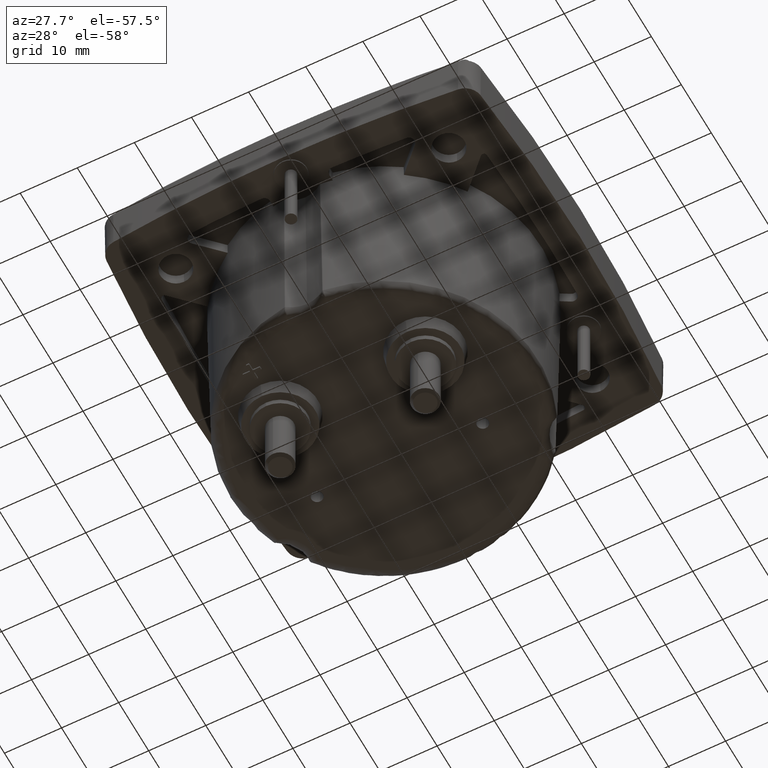
[diagram: clean part render]
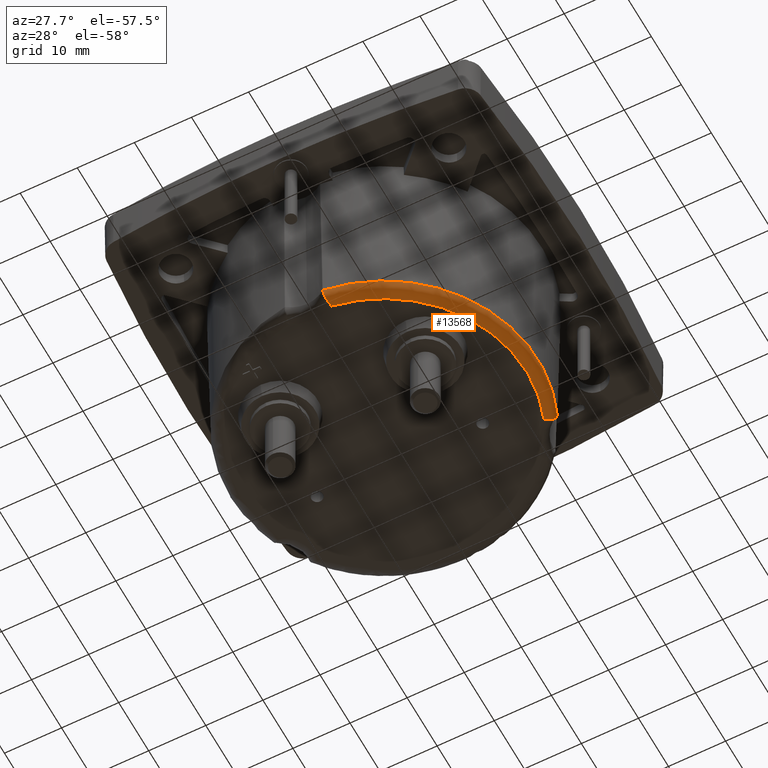
[diagram: same view with one face highlighted and labeled with its STEP entity id]
A machine part, auxiliary view. The second image highlights one B-rep face of the part: STEP entity #13568.
In plain terms, the highlighted face is a freeform B-spline surface patch.
Its self-contained STEP definition (entity closure, byte-faithful):
#163 = DIRECTION ( 'NONE',  ( 0.000000000000000000, 0.000000000000000000, 1.000000000000000000 ) ) ;
#543 = CARTESIAN_POINT ( 'NONE',  ( 1.541673589294148439, 0.1971623052784665930, -1.232418349552430348 ) ) ;
#1802 = CARTESIAN_POINT ( 'NONE',  ( 1.436688407325936945, -1.144786727957694428, -1.275590944881890731 ) ) ;
#3297 = CARTESIAN_POINT ( 'NONE',  ( 0.7073967601038961828, -1.237951086539462731, -1.252667391265019026 ) ) ;
#3783 = CARTESIAN_POINT ( 'NONE',  ( 0.7106229095790023154, -1.220937082073477509, -1.265240537520022857 ) ) ;
#3991 = CARTESIAN_POINT ( 'NONE',  ( 1.508727992144678787, 0.1686865396303875164, -1.270064860217662073 ) ) ;
#4247 = CARTESIAN_POINT ( 'NONE',  ( 1.538494690833539735, 0.1943218351687429069, -1.239498227927069873 ) ) ;
#5001 = CARTESIAN_POINT ( 'NONE',  ( 1.464029507992724355, -1.174322138988627584, -1.243707193137567835 ) ) ;
#5161 = AXIS2_PLACEMENT_3D ( 'NONE', #15137, #163, #14405 ) ;
#5253 = CARTESIAN_POINT ( 'NONE',  ( 0.6818329258766465673, -1.185151309035466394, -1.275590944881889843 ) ) ;
#5739 = CARTESIAN_POINT ( 'NONE',  ( 1.853219376027852805, -0.5002255137607584112, -1.243707193137567835 ) ) ;
#6496 = CARTESIAN_POINT ( 'NONE',  ( 0.7120152710690486053, -1.213145006448309138, -1.268982027594068640 ) ) ;
#6983 = CARTESIAN_POINT ( 'NONE',  ( 0.7048623193828079669, -1.250547571327034646, -1.237386482607142346 ) ) ;
#7228 = CARTESIAN_POINT ( 'NONE',  ( 0.7173885677934211946, -1.180434525700972515, -1.275590944881889843 ) ) ;
#7472 = CARTESIAN_POINT ( 'NONE',  ( 0.7116148016700577505, -1.215413566103211496, -1.267999543603349322 ) ) ;
#7677 = CARTESIAN_POINT ( 'NONE',  ( 1.542304465282912540, 0.1977288774047252229, -1.230756557234188531 ) ) ;
#8674 = CARTESIAN_POINT ( 'NONE',  ( 1.758942099747732080, -0.4788224899354563413, -1.275590944881889843 ) ) ;
#9314 = EDGE_CURVE ( 'NONE', #24742, #16966, #31895, .T. ) ;
#10405 = CARTESIAN_POINT ( 'NONE',  ( 0.7069210084994519416, -1.240367660801940275, -1.250272794811946087 ) ) ;
#10892 = CARTESIAN_POINT ( 'NONE',  ( 0.7029515335368800022, -1.259550461876380867, -1.216128162813870039 ) ) ;
#11102 = CARTESIAN_POINT ( 'NONE',  ( 1.542713396475837939, 0.1980963567389108504, -1.229646309278512595 ) ) ;
#11830 = CARTESIAN_POINT ( 'NONE',  ( 1.539550226586051895, 0.1952623423623114085, -1.237343623389074443 ) ) ;
#12069 = CARTESIAN_POINT ( 'NONE',  ( 1.513208333565266850, 0.1724329959645390653, -1.267834586895724369 ) ) ;
#12176 = CIRCLE ( 'NONE', #5161, 1.061212311381397821 ) ;
#12277 = B_SPLINE_CURVE_WITH_KNOTS ( 'NONE', 3,
 ( #21181, #24862, #36171, #15271, #16000, #18962, #37862, #34185, #30229, #23120, #3991, #27045, #38347, #12069, #26073, #26559, #45223, #22630, #38105, #23367, #41057, #22880, #15523, #19208, #44736, #4247, #11830, #33936, #543, #7677, #11102, #34668, #30475, #37364, #42037 ),
 .UNSPECIFIED., .F., .F.,
 ( 4, 2, 2, 2, 1, 1, 2, 2, 2, 2, 1, 1, 2, 2, 2, 2, 1, 2, 2, 4 ),
 ( 0.000000000000000000, 0.1249999999999530931, 0.1874999999999286959, 0.2187499999999165112, 0.2343749999999118760, 0.2421874999999130695, 0.2460937499999100442, 0.2499999999999070188, 0.3749999999999395484, 0.4374999999999560352, 0.4687499999999640843, 0.4843749999999660272, 0.4921874999999693578, 0.4999999999999726885, 0.6249999999999850120, 0.6874999999999912292, 0.7187499999999956701, 0.7343749999999961142, 0.7499999999999965583, 1.000000000000000000 ),
 .UNSPECIFIED. ) ;
#13568 = ADVANCED_FACE ( 'NONE', ( #20695 ), #31356, .T. ) ;
#14204 = CARTESIAN_POINT ( 'NONE',  ( 0.7173885677934211946, -1.180434525700972515, -1.275590944881889843 ) ) ;
#14405 = DIRECTION ( 'NONE',  ( -1.000000000000000000, 0.000000000000000000, 2.059416736398898916E-15 ) ) ;
#14580 = CARTESIAN_POINT ( 'NONE',  ( 0.7072520316193484646, -1.238688316171857817, -1.251956188027274486 ) ) ;
#14822 = CARTESIAN_POINT ( 'NONE',  ( 0.7124058754257118764, -1.210915914276542882, -1.269881253000223920 ) ) ;
#15065 = CARTESIAN_POINT ( 'NONE',  ( 0.7075510090780411376, -1.237163872667017328, -1.253413101475109981 ) ) ;
#15137 = CARTESIAN_POINT ( 'NONE',  ( 0.5704286375722834590, -0.2090036857513889734, -1.198224992633279529 ) ) ;
#15271 = CARTESIAN_POINT ( 'NONE',  ( 1.501585761535232821, 0.1627404150384395565, -1.273014060126988589 ) ) ;
#15309 = VERTEX_POINT ( 'NONE', #36092 ) ;
#15494 = ORIENTED_EDGE ( 'NONE', *, *, #27502, .T. ) ;
#15523 = CARTESIAN_POINT ( 'NONE',  ( 1.529048626454236004, 0.1860164917577455668, -1.253840888614742743 ) ) ;
#16000 = CARTESIAN_POINT ( 'NONE',  ( 1.503354515571247552, 0.1642054895229573264, -1.272388148840809308 ) ) ;
#16966 = VERTEX_POINT ( 'NONE', #30922 ) ;
#17067 = EDGE_CURVE ( 'NONE', #16966, #24278, #43972, .T. ) ;
#17178 = CARTESIAN_POINT ( 'NONE',  ( 1.485192388098850458, 0.1494407013135088391, -1.275590944881889843 ) ) ;
#18011 = CARTESIAN_POINT ( 'NONE',  ( 0.7035172530793497581, -1.256907043459266182, -1.224258371491891317 ) ) ;
#18265 = CARTESIAN_POINT ( 'NONE',  ( 0.7057892020843243852, -1.246016696710062321, -1.243717059406271419 ) ) ;
#18509 = CARTESIAN_POINT ( 'NONE',  ( 0.7031033833757914797, -1.258844318042156907, -1.218654294162257123 ) ) ;
#18752 = CARTESIAN_POINT ( 'NONE',  ( 0.7122179809170767761, -1.211990155876741637, -1.269455905897282078 ) ) ;
#18962 = CARTESIAN_POINT ( 'NONE',  ( 1.505703808634487828, 0.1661601952236650415, -1.271446400270612065 ) ) ;
#19208 = CARTESIAN_POINT ( 'NONE',  ( 1.532333289270222387, 0.1888783191233868453, -1.249871988716381166 ) ) ;
#19726 = CARTESIAN_POINT ( 'NONE',  ( 0.6907599454327383315, -1.263371717381706283, -1.198224992632851427 ) ) ;
#19967 = CARTESIAN_POINT ( 'NONE',  ( 0.6906699253735106847, -1.262582942836305122, -1.243707193137568057 ) ) ;
#20695 = FACE_OUTER_BOUND ( 'NONE', #31022, .T. ) ;
#21181 = CARTESIAN_POINT ( 'NONE',  ( 1.485192388098850458, 0.1494407013135088391, -1.275590944881889843 ) ) ;
#21697 = CARTESIAN_POINT ( 'NONE',  ( 0.7089864946710466853, -1.229770660126443538, -1.259744012332634888 ) ) ;
#22426 = CARTESIAN_POINT ( 'NONE',  ( 0.7082468667688249786, -1.233605189157864768, -1.256716582950503591 ) ) ;
#22630 = CARTESIAN_POINT ( 'NONE',  ( 1.525834092889038152, 0.1832239550164014297, -1.257442806343011865 ) ) ;
#22880 = CARTESIAN_POINT ( 'NONE',  ( 1.528918650552381076, 0.1859032958093546906, -1.253995837708989702 ) ) ;
#23120 = CARTESIAN_POINT ( 'NONE',  ( 1.508501102703318830, 0.1684967998990802851, -1.270176007990926781 ) ) ;
#23367 = CARTESIAN_POINT ( 'NONE',  ( 1.528095200712876967, 0.1851865388135069401, -1.254963080955893373 ) ) ;
#23638 = CARTESIAN_POINT ( 'NONE',  ( 1.398355307502149092, -1.103377134643089175, -1.275590944881889843 ) ) ;
#24278 = VERTEX_POINT ( 'NONE', #45677 ) ;
#24742 = VERTEX_POINT ( 'NONE', #43561 ) ;
#24862 = CARTESIAN_POINT ( 'NONE',  ( 1.490821256435562514, 0.1539482929037030712, -1.275590944881889843 ) ) ;
#25133 = CARTESIAN_POINT ( 'NONE',  ( 0.7112801766654089919, -1.217286803661447481, -1.267101541288105260 ) ) ;
#26073 = CARTESIAN_POINT ( 'NONE',  ( 1.516987415389214222, 0.1756297491375407860, -1.265303980127841177 ) ) ;
#26559 = CARTESIAN_POINT ( 'NONE',  ( 1.522034286520808966, 0.1799455716636247649, -1.261134808216145764 ) ) ;
#27045 = CARTESIAN_POINT ( 'NONE',  ( 1.508877765801105886, 0.1688117880398385118, -1.269991083619480321 ) ) ;
#27502 = EDGE_CURVE ( 'NONE', #24278, #15309, #12277, .T. ) ;
#28283 = CARTESIAN_POINT ( 'NONE',  ( 0.6869909572089756278, -1.230347056008167961, -1.275590944881890954 ) ) ;
#29054 = CARTESIAN_POINT ( 'NONE',  ( 0.7066488588648731639, -1.241736700555529538, -1.248791262069436803 ) ) ;
#29292 = CARTESIAN_POINT ( 'NONE',  ( 0.7153243680596966803, -1.193696722416943690, -1.274703261156330925 ) ) ;
#29412 = CARTESIAN_POINT ( 'NONE',  ( 1.392854100934363348, -1.078248797664655756, -1.275590944881889843 ) ) ;
#29546 = CARTESIAN_POINT ( 'NONE',  ( 0.7129487249569066432, -1.207806153969894769, -1.271087299825993666 ) ) ;
#30229 = CARTESIAN_POINT ( 'NONE',  ( 1.507956023846645621, 0.1680409883592553499, -1.270438521303936863 ) ) ;
#30475 = CARTESIAN_POINT ( 'NONE',  ( 1.546456677965927007, 0.2014639003322380995, -1.218847871028806873 ) ) ;
#30922 = CARTESIAN_POINT ( 'NONE',  ( 0.7173885677934211946, -1.180434525700972515, -1.275590944881889843 ) ) ;
#31022 = EDGE_LOOP ( 'NONE', ( #45062, #45939, #15494, #42197 ) ) ;
#31356 =( BOUNDED_SURFACE ( )  B_SPLINE_SURFACE ( 3, 3, ( 
 ( #35438, #8674, #23638, #5253 ),
 ( #46962, #46718, #1802, #28283 ),
 ( #38623, #5739, #5001, #19967 ),
 ( #43037, #39108, #34697, #19726 ) ),
 .UNSPECIFIED., .F., .F., .T. ) 
 B_SPLINE_SURFACE_WITH_KNOTS ( ( 4, 4 ),
 ( 4, 4 ),
 ( 0.000000000000000000, 1.000000000000000000 ),
 ( 0.000000000000000000, 1.000000000000000000 ),
 .UNSPECIFIED. ) 
 GEOMETRIC_REPRESENTATION_ITEM ( )  RATIONAL_B_SPLINE_SURFACE ( (
 ( 1.000000000000000000, 0.7299828246970448964, 0.7299828246970448964, 1.000000000000000000),
 ( 0.8088336327694332084, 0.5904346599590031275, 0.5904346599590031275, 0.8088336327694332084),
 ( 0.8088336327694332084, 0.5904346599590031275, 0.5904346599590031275, 0.8088336327694332084),
 ( 1.000000000000000000, 0.7299828246970448964, 0.7299828246970448964, 1.000000000000000000) ) ) 
 REPRESENTATION_ITEM ( '' )  SURFACE ( )  );
#31895 = B_SPLINE_CURVE_WITH_KNOTS ( 'NONE', 3,
 ( #46535, #41095, #36435, #10892, #18509, #40854, #18011, #36919, #37403, #44538, #44051, #6983, #18265, #48221, #29054, #10405, #14580, #3297, #32760, #15065, #22426, #21697, #37156, #3783, #25133, #7472, #6496, #18752, #33005, #33243, #14822, #29546, #47731, #29292, #33723, #7228 ),
 .UNSPECIFIED., .F., .F.,
 ( 4, 2, 2, 1, 2, 2, 2, 2, 1, 1, 2, 2, 2, 2, 1, 1, 1, 2, 2, 2, 4 ),
 ( 0.000000000000000000, 0.1250000000000185407, 0.1875000000000270894, 0.2187500000000303368, 0.2343750000000307809, 0.2500000000000312528, 0.3750000000000205946, 0.4375000000000107137, 0.4687500000000036082, 0.4843750000000002776, 0.4921874999999985567, 0.4999999999999968359, 0.6249999999999582556, 0.6874999999999390488, 0.7187499999999306111, 0.7343749999999277245, 0.7421874999999259481, 0.7460937499999260591, 0.7499999999999261702, 0.8749999999999631406, 1.000000000000000000 ),
 .UNSPECIFIED. ) ;
#32760 = CARTESIAN_POINT ( 'NONE',  ( 0.7074938778565785791, -1.237455719808708166, -1.253139182441528554 ) ) ;
#33005 = CARTESIAN_POINT ( 'NONE',  ( 0.7123053825803309369, -1.211490836296701401, -1.269655160987331000 ) ) ;
#33243 = CARTESIAN_POINT ( 'NONE',  ( 0.7123637667863924605, -1.211156985365807737, -1.269787132529875961 ) ) ;
#33723 = CARTESIAN_POINT ( 'NONE',  ( 0.7162991832000905612, -1.187563914818199784, -1.275590944881890287 ) ) ;
#33936 = CARTESIAN_POINT ( 'NONE',  ( 1.540989742601022838, 0.1965495616661248057, -1.234067494334575965 ) ) ;
#34185 = CARTESIAN_POINT ( 'NONE',  ( 1.507461718181395405, 0.1676278071463148112, -1.270668226141147272 ) ) ;
#34668 = CARTESIAN_POINT ( 'NONE',  ( 1.542895422196216115, 0.1982600327429495102, -1.229137994452550453 ) ) ;
#34697 = CARTESIAN_POINT ( 'NONE',  ( 1.464698512830847843, -1.175044836041553520, -1.198224992632851427 ) ) ;
#35047 = EDGE_CURVE ( 'NONE', #24742, #15309, #12176, .T. ) ;
#35438 = CARTESIAN_POINT ( 'NONE',  ( 1.471499421332278068, 0.1825911821285454983, -1.275590944881889843 ) ) ;
#36092 = CARTESIAN_POINT ( 'NONE',  ( 1.548326349033533500, 0.2031705925722295525, -1.198224992633031505 ) ) ;
#36171 = CARTESIAN_POINT ( 'NONE',  ( 1.495644698349565482, 0.1578586388977154809, -1.274703461598142296 ) ) ;
#36307 = CARTESIAN_POINT ( 'NONE',  ( 1.734429718285660948, -0.4866224737854999982, -1.275590944881889843 ) ) ;
#36435 = CARTESIAN_POINT ( 'NONE',  ( 0.7025799664851352100, -1.261269740859803479, -1.208498649955852988 ) ) ;
#36919 = CARTESIAN_POINT ( 'NONE',  ( 0.7036774179690735709, -1.256153867991799178, -1.226097913152890850 ) ) ;
#37156 = CARTESIAN_POINT ( 'NONE',  ( 0.7102006899384567529, -1.223242123368457168, -1.263913326060002174 ) ) ;
#37364 = CARTESIAN_POINT ( 'NONE',  ( 1.548186134691608151, 0.2030430370637693882, -1.208465501711216472 ) ) ;
#37403 = CARTESIAN_POINT ( 'NONE',  ( 0.7037875858659409234, -1.255635313857763613, -1.227319208411318696 ) ) ;
#37862 = CARTESIAN_POINT ( 'NONE',  ( 1.506436369091398886, 0.1667713335007785513, -1.271131781385969273 ) ) ;
#38105 = CARTESIAN_POINT ( 'NONE',  ( 1.526906982407049584, 0.1841537483286324606, -1.256307647443030584 ) ) ;
#38347 = CARTESIAN_POINT ( 'NONE',  ( 1.508894594343409779, 0.1688258630262428894, -1.269982900279294835 ) ) ;
#38623 = CARTESIAN_POINT ( 'NONE',  ( 1.542975683008770416, 0.2136539329714503554, -1.243707193137568057 ) ) ;
#39108 = CARTESIAN_POINT ( 'NONE',  ( 1.854179752453989138, -0.5004435404193644521, -1.198224992632851427 ) ) ;
#40854 = CARTESIAN_POINT ( 'NONE',  ( 0.7033724199343722727, -1.257585969257166258, -1.222397941858170745 ) ) ;
#41057 = CARTESIAN_POINT ( 'NONE',  ( 1.528591042256909782, 0.1856180692084597184, -1.254383178734835846 ) ) ;
#41095 = CARTESIAN_POINT ( 'NONE',  ( 0.7024442747023079692, -1.261882492688997770, -1.203344648896576663 ) ) ;
#42037 = CARTESIAN_POINT ( 'NONE',  ( 1.548326349033533500, 0.2031705925722295525, -1.198224992633031505 ) ) ;
#42197 = ORIENTED_EDGE ( 'NONE', *, *, #35047, .F. ) ;
#43037 = CARTESIAN_POINT ( 'NONE',  ( 1.543703791832560457, 0.2139703605860095725, -1.198224992632851427 ) ) ;
#43561 = CARTESIAN_POINT ( 'NONE',  ( 0.7024240842391888950, -1.261975087000438922, -1.198224992726131921 ) ) ;
#43972 =( BOUNDED_CURVE ( )  B_SPLINE_CURVE ( 3, ( #14204, #29412, #36307, #17178 ),
 .UNSPECIFIED., .F., .T. ) 
 B_SPLINE_CURVE_WITH_KNOTS ( ( 4, 4 ),
 ( 0.000000000000000000, 1.000000000000000000 ),
 .UNSPECIFIED. ) 
 CURVE ( )  GEOMETRIC_REPRESENTATION_ITEM ( )  RATIONAL_B_SPLINE_CURVE ( ( 1.000000000000000000, 0.7492765694257818021, 0.7492765694257818021, 1.000000000000000000 ) ) 
 REPRESENTATION_ITEM ( '' )  );
#44051 = CARTESIAN_POINT ( 'NONE',  ( 0.7043333219011125301, -1.253062325857698722, -1.232989964614089384 ) ) ;
#44538 = CARTESIAN_POINT ( 'NONE',  ( 0.7038490217447842534, -1.255345862379712685, -1.227975534132256907 ) ) ;
#44736 = CARTESIAN_POINT ( 'NONE',  ( 1.535034140973892791, 0.1912536394846162946, -1.245828702184975212 ) ) ;
#45062 = ORIENTED_EDGE ( 'NONE', *, *, #9314, .T. ) ;
#45223 = CARTESIAN_POINT ( 'NONE',  ( 1.523613865635459419, 0.1813047041632253609, -1.259682458238790659 ) ) ;
#45677 = CARTESIAN_POINT ( 'NONE',  ( 1.485192388098850458, 0.1494407013135088391, -1.275590944881889843 ) ) ;
#45939 = ORIENTED_EDGE ( 'NONE', *, *, #17067, .T. ) ;
#46535 = CARTESIAN_POINT ( 'NONE',  ( 0.7024240842391888950, -1.261975087000438922, -1.198224992726131921 ) ) ;
#46718 = CARTESIAN_POINT ( 'NONE',  ( 1.813970409430456288, -0.4913151315313589729, -1.275590944881890731 ) ) ;
#46962 = CARTESIAN_POINT ( 'NONE',  ( 1.513219102019816020, 0.2007220694475831957, -1.275590944881890954 ) ) ;
#47731 = CARTESIAN_POINT ( 'NONE',  ( 0.7136480745868453157, -1.203811353709158816, -1.272450573029130227 ) ) ;
#48221 = CARTESIAN_POINT ( 'NONE',  ( 0.7061203974762959579, -1.244380330374630361, -1.245782923913823614 ) ) ;